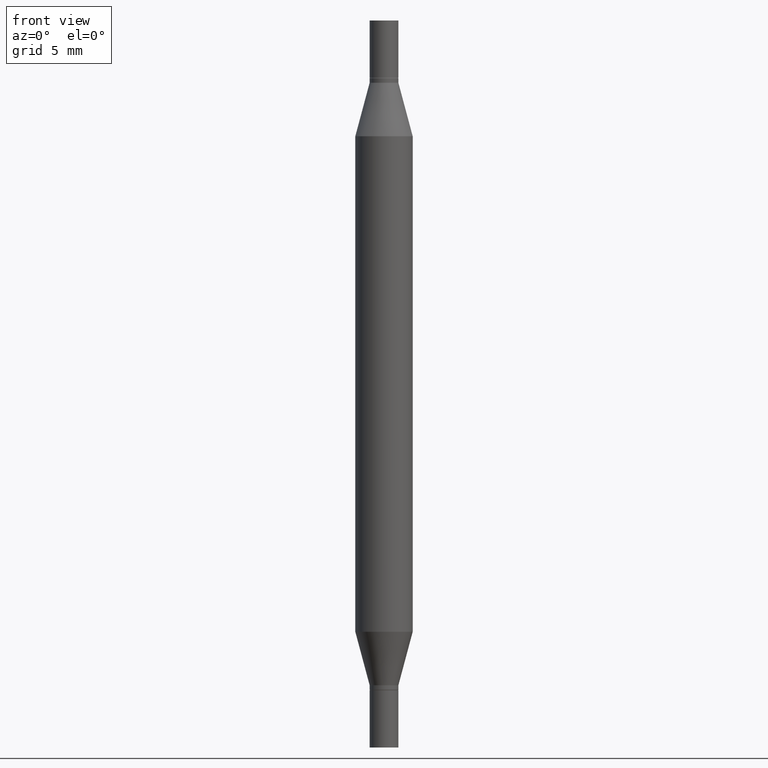
[diagram: clean part render]
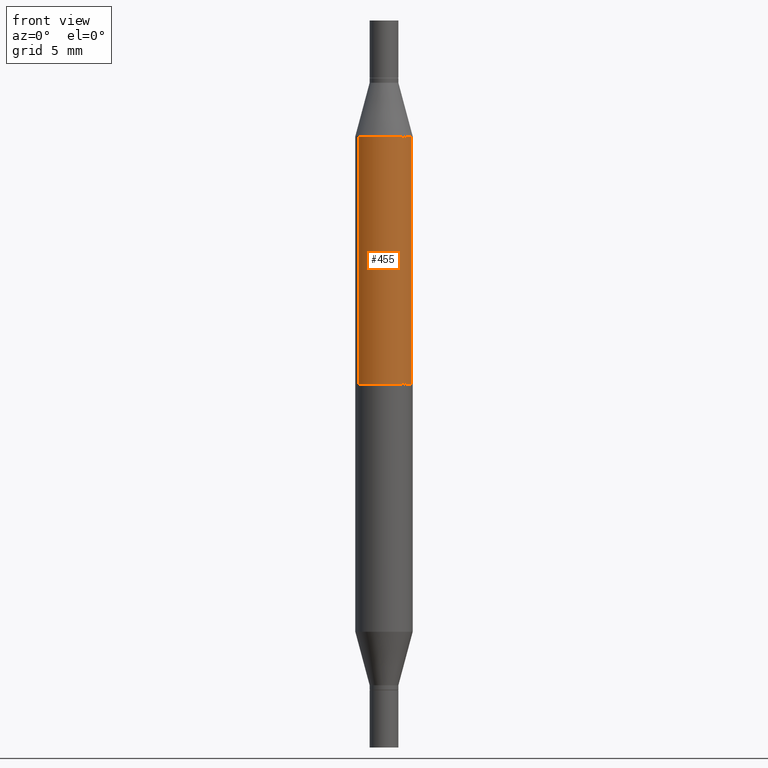
[diagram: same view with one face highlighted and labeled with its STEP entity id]
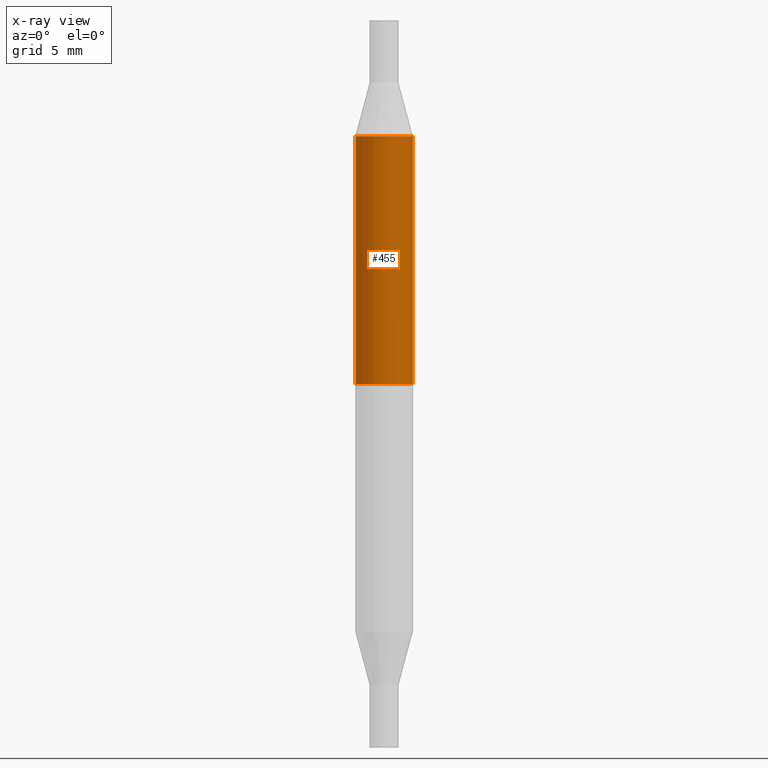
[diagram: x-ray of the same camera — body ghosted, the highlighted face saturated]
A machine part, front view. The second image highlights one B-rep face of the part: STEP entity #455.
The next image is the same camera in x-ray: the body ghosted, the highlighted face saturated — about 0% of this face is hidden behind the body in this view.
In plain terms, the highlighted cylindrical surface (edge-blend (fillet) strip) has radius 1.4999 mm, axis along (-0, -0, -1).
Its self-contained STEP definition (entity closure, byte-faithful):
#29 = CARTESIAN_POINT ( 'NONE',  ( -0.05904999999999999832, -1.316359346049593314E-15, -0.7480499999999999927 ) ) ;
#37 = CARTESIAN_POINT ( 'NONE',  ( 0.000000000000000000, -5.223847416807283040E-15, -1.496099999999999985 ) ) ;
#61 = AXIS2_PLACEMENT_3D ( 'NONE', #653, #627, #94 ) ;
#94 = DIRECTION ( 'NONE',  ( 1.000000000000000000, -6.982962677686265133E-15, 0.000000000000000000 ) ) ;
#141 = CIRCLE ( 'NONE', #659, 0.05904999999999999832 ) ;
#179 = FACE_OUTER_BOUND ( 'NONE', #670, .T. ) ;
#198 = ORIENTED_EDGE ( 'NONE', *, *, #558, .T. ) ;
#274 = CARTESIAN_POINT ( 'NONE',  ( 0.05904999999999999832, -5.636191362924657961E-15, -1.496099999999999985 ) ) ;
#330 = DIRECTION ( 'NONE',  ( -2.445468806185136597E-29, -3.491805094961124077E-15, -1.000000000000000000 ) ) ;
#348 = DIRECTION ( 'NONE',  ( -2.445468806185136877E-29, -3.491805094961123683E-15, -1.000000000000000000 ) ) ;
#380 = AXIS2_PLACEMENT_3D ( 'NONE', #37, #330, #945 ) ;
#420 = CARTESIAN_POINT ( 'NONE',  ( -0.05904999999999999832, -4.260284833459826385E-16, -0.2380954988232817371 ) ) ;
#422 = VECTOR ( 'NONE', #572, 39.37007874015748143 ) ;
#455 = ADVANCED_FACE ( 'NONE', ( #179 ), #733, .T. ) ;
#469 = CARTESIAN_POINT ( 'NONE',  ( 1.829332940466791194E-29, -2.611802615521614830E-15, -0.7480499999999999927 ) ) ;
#470 = VERTEX_POINT ( 'NONE', #420 ) ;
#483 = CARTESIAN_POINT ( 'NONE',  ( 0.05904999999999999832, -2.133815698935376215E-15, -0.7480499999999999927 ) ) ;
#488 = EDGE_CURVE ( 'NONE', #470, #875, #761, .T. ) ;
#497 = EDGE_CURVE ( 'NONE', #801, #632, #141, .T. ) ;
#509 = ORIENTED_EDGE ( 'NONE', *, *, #889, .F. ) ;
#558 = EDGE_CURVE ( 'NONE', #470, #632, #793, .T. ) ;
#572 = DIRECTION ( 'NONE',  ( -2.445468806185136877E-29, -3.491805094961123683E-15, -1.000000000000000000 ) ) ;
#587 = ORIENTED_EDGE ( 'NONE', *, *, #488, .F. ) ;
#627 = DIRECTION ( 'NONE',  ( 2.445468806185136597E-29, 3.491805094961124077E-15, 1.000000000000000000 ) ) ;
#632 = VERTEX_POINT ( 'NONE', #29 ) ;
#653 = CARTESIAN_POINT ( 'NONE',  ( 3.076410765668157214E-29, -8.311408901143909150E-16, -0.2380954988232817371 ) ) ;
#659 = AXIS2_PLACEMENT_3D ( 'NONE', #469, #925, #777 ) ;
#670 = EDGE_LOOP ( 'NONE', ( #587, #198, #901, #509 ) ) ;
#707 = VECTOR ( 'NONE', #348, 39.37007874015748143 ) ;
#719 = CARTESIAN_POINT ( 'NONE',  ( -0.05904999999999999832, -4.818735010038875060E-15, -1.496099999999999985 ) ) ;
#733 = CYLINDRICAL_SURFACE ( 'NONE', #380, 0.05904999999999999832 ) ;
#761 = CIRCLE ( 'NONE', #61, 0.05904999999999999832 ) ;
#777 = DIRECTION ( 'NONE',  ( 0.000000000000000000, 1.000000000000000000, -4.626330217890369336E-15 ) ) ;
#793 = LINE ( 'NONE', #719, #422 ) ;
#801 = VERTEX_POINT ( 'NONE', #483 ) ;
#814 = CARTESIAN_POINT ( 'NONE',  ( 0.05904999999999999832, -1.243484836231765441E-15, -0.2380954988232817371 ) ) ;
#864 = LINE ( 'NONE', #274, #707 ) ;
#875 = VERTEX_POINT ( 'NONE', #814 ) ;
#889 = EDGE_CURVE ( 'NONE', #875, #801, #864, .T. ) ;
#901 = ORIENTED_EDGE ( 'NONE', *, *, #497, .F. ) ;
#925 = DIRECTION ( 'NONE',  ( -0.000000000000000000, -3.491643216902134830E-15, -1.000000000000000000 ) ) ;
#945 = DIRECTION ( 'NONE',  ( 1.000000000000000000, -6.982962677686273021E-15, 0.000000000000000000 ) ) ;